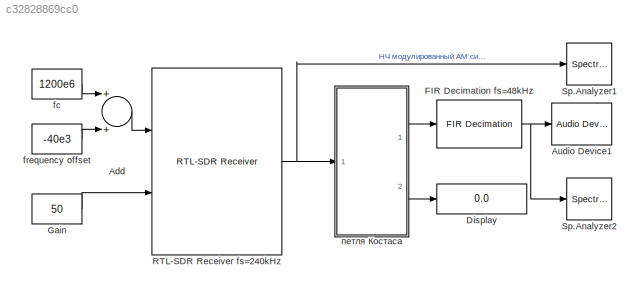
MODEL slx_c32828869cc0
KIND model
CONFIG AbsTol = auto
CONFIG EnableMultiTasking = off
CONFIG FixedStep = auto
CONFIG MaxStep = auto
CONFIG MinStep = auto
CONFIG PreLoadFcn = % параметры контура ФАПЧ\nfs=240e3; % частота дискретизации (Гц)\nA = 1;       % амплитуда входного сигнала \nT = 1/fs;    % период дискретизации\nKp = A/2;   % коэффициент усиления ФД\nBn = 1000; % шумовая полоса, Гц\nKo = 1;      % коэффициент усиления ГУН (нормирован к fs)\nd = 0.707;  % демпинг фактор\n% оценка коэффициентов ПФ\nK1 = (4*d*Bn*T)/(Ko*Kp*(d+1/(4*d)));\nK2 = (4*(Bn*T)^2)/(Ko*Kp*(d+1/4*d)^2)...<+1ch>
CONFIG RelTol = 1e-3
CONFIG SampleTimeConstraint = Unconstrained
CONFIG Solver = VariableStepAuto
CONFIG SolverName = VariableStepAuto
CONFIG StartTime = 0.0
CONFIG StopTime = inf
BLOCK [Sum] Add
  InputSameDT = off
  OutDataTypeStr = Inherit: Inherit via internal rule
  Ports = [2, 1]
  SaturateOnIntegerOverflow = off
BLOCK [Reference] Audio Device1  REF=dspsnks4/Audio Device
Writer
  Ports = [1]
  SourceBlock = dspsnks4/Audio Device\nWriter
  SourceProductBaseCode = DS
  SourceProductName = DSP System Toolbox
  SourceType = Audio Device Writer
BLOCK [Display] Display
  Decimation = 1
  Ports = [1]
BLOCK [Reference] FIR Decimation fs=48kHz  REF=dspmlti4/FIR
Decimation
  Ports = [1, 1]
  SourceBlock = dspmlti4/FIR\nDecimation
  SourceProductBaseCode = DS
  SourceProductName = DSP System Toolbox
  SourceType = FIR Decimation
  UserDataPersistent = on
BLOCK [Constant] Gain
  Value = 50
BLOCK [Reference] RTL-SDR Receiver fs=240kHz  REF=sdrrlib/RTL-SDR
Receiver
  Ports = [2, 1]
  SourceBlock = sdrrlib/RTL-SDR\nReceiver
  SourceProductBaseCode = RTLSDR
  SourceProductName = Communications System Toolbox Support Package for RTL-SDR Radio
  SourceType = RTL-SDR Receiver
BLOCK [SpectrumAnalyzer] Sp.Analyzer1
  Ports = [1]
  ScopeSpecificationString = spbscopes.SpectrumAnalyzerBlockCfg('CurrentConfiguration', extmgr.ConfigurationSet(extmgr.Configuration('Core','General UI',true,'ShowMainToolbar',false,'ShowStatusbar',false,'FigureColor',[1 1 1]),extmgr.Configuration('Core','Source UI',true),extmgr.Configuration('Sources','WiredSimulink',true),extmgr.Configuration('Sources','Workspace',false),extmgr.Configuration('Sources','Streaming',false),ext...<+3370ch>
BLOCK [SpectrumAnalyzer] Sp.Analyzer2
  Ports = [1]
  ScopeSpecificationString = spbscopes.SpectrumAnalyzerBlockCfg('CurrentConfiguration', extmgr.ConfigurationSet(extmgr.Configuration('Core','General UI',true,'ShowMainToolbar',false,'ShowStatusbar',false,'FigureColor',[1 1 1]),extmgr.Configuration('Core','Source UI',true),extmgr.Configuration('Sources','WiredSimulink',true),extmgr.Configuration('Sources','Workspace',false),extmgr.Configuration('Sources','Simulink',false),extm...<+3329ch>
BLOCK [Constant] fc
  Value = 1200e6
BLOCK [Constant] frequency offset
  Value = -40e3
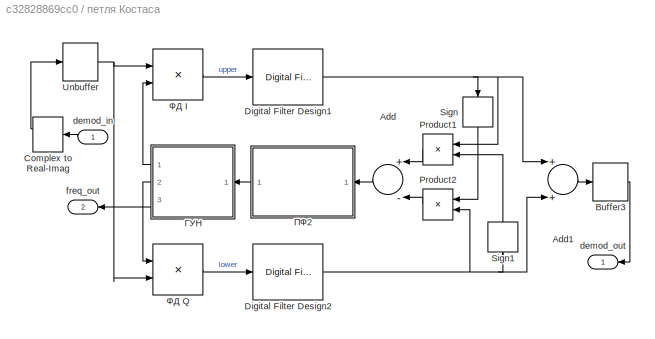
BLOCK [SubSystem] петля Костаса
  Ports = [1, 2]
  RequestExecContextInheritance = off
BLOCK [Sum] петля Костаса/Add
  InputSameDT = off
  Inputs = +-
  OutDataTypeStr = Inherit: Inherit via internal rule
  Ports = [2, 1]
  SaturateOnIntegerOverflow = off
BLOCK [Sum] петля Костаса/Add1
  InputSameDT = off
  OutDataTypeStr = Inherit: Inherit via internal rule
  Ports = [2, 1]
  SaturateOnIntegerOverflow = off
BLOCK [Buffer] петля Костаса/Buffer3
  N = frame_size
  OutputFrames = off
BLOCK [ComplexToRealImag] петля Костаса/Complex to Real-Imag
  Ports = [1, 2]
BLOCK [Reference] петля Костаса/Digital Filter Design1  REF=dsparch4/Digital
Filter Design
  Ports = [1, 1]
  SourceBlock = dsparch4/Digital\nFilter Design
  SourceProductBaseCode = DS
  SourceProductName = DSP System Toolbox
  SourceType = Digital Filter Design
  UserDataPersistent = on
BLOCK [Reference] петля Костаса/Digital Filter Design2  REF=dsparch4/Digital
Filter Design
  Ports = [1, 1]
  SourceBlock = dsparch4/Digital\nFilter Design
  SourceProductBaseCode = DS
  SourceProductName = DSP System Toolbox
  SourceType = Digital Filter Design
  UserDataPersistent = on
BLOCK [Product] петля Костаса/Product1
  InputSameDT = off
  OutDataTypeStr = Inherit: Inherit via internal rule
  Ports = [2, 1]
  RndMeth = Floor
  SaturateOnIntegerOverflow = off
BLOCK [Product] петля Костаса/Product2
  InputSameDT = off
  OutDataTypeStr = Inherit: Inherit via internal rule
  Ports = [2, 1]
  RndMeth = Floor
  SaturateOnIntegerOverflow = off
BLOCK [Signum] петля Костаса/Sign
BLOCK [Signum] петля Костаса/Sign1
BLOCK [Unbuffer] петля Костаса/Unbuffer
  Ports = [1, 1]
BLOCK [Inport] петля Костаса/demod_in
  IconDisplay = Port number
BLOCK [Outport] петля Костаса/demod_out
  IconDisplay = Port number
BLOCK [Outport] петля Костаса/freq_out
  IconDisplay = Port number
  Port = 2
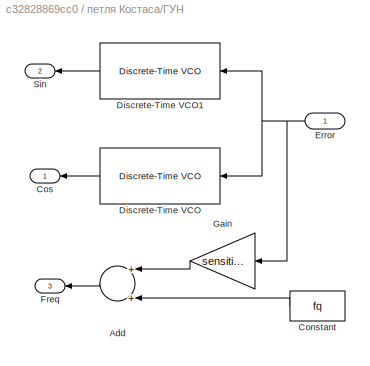
BLOCK [SubSystem] петля Костаса/ГУН
  Ports = [1, 3]
  RequestExecContextInheritance = off
BLOCK [Sum] петля Костаса/ГУН/Add
  InputSameDT = off
  OutDataTypeStr = Inherit: Inherit via internal rule
  Ports = [2, 1]
  SaturateOnIntegerOverflow = off
BLOCK [Constant] петля Костаса/ГУН/Constant
  SampleTime = 1/fs
  Value = fq
BLOCK [Outport] петля Костаса/ГУН/Cos
  IconDisplay = Port number
BLOCK [Reference] петля Костаса/ГУН/Discrete-Time VCO  REF=commsynccomp2/Discrete-Time
VCO
  Ports = [1, 1]
  SourceBlock = commsynccomp2/Discrete-Time\nVCO
  SourceProductBaseCode = CM
  SourceProductName = Communications System Toolbox
  SourceType = Discrete-Time VCO
BLOCK [Reference] петля Костаса/ГУН/Discrete-Time VCO1  REF=commsynccomp2/Discrete-Time
VCO
  Ports = [1, 1]
  SourceBlock = commsynccomp2/Discrete-Time\nVCO
  SourceProductBaseCode = CM
  SourceProductName = Communications System Toolbox
  SourceType = Discrete-Time VCO
BLOCK [Inport] петля Костаса/ГУН/Error
  IconDisplay = Port number
BLOCK [Outport] петля Костаса/ГУН/Freq
  IconDisplay = Port number
  Port = 3
BLOCK [Gain] петля Костаса/ГУН/Gain
  Gain = sensitivity
  OutDataTypeStr = Inherit: Inherit via internal rule
  ParamDataTypeStr = Inherit: Inherit via internal rule
  SaturateOnIntegerOverflow = off
BLOCK [Outport] петля Костаса/ГУН/Sin
  IconDisplay = Port number
  Port = 2
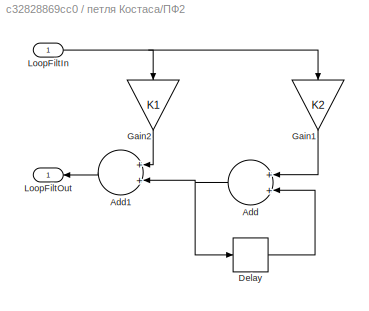
BLOCK [SubSystem] петля Костаса/ПФ2
  Ports = [1, 1]
  RequestExecContextInheritance = off
BLOCK [Sum] петля Костаса/ПФ2/Add
  InputSameDT = off
  OutDataTypeStr = Inherit: Inherit via internal rule
  Ports = [2, 1]
  SaturateOnIntegerOverflow = off
BLOCK [Sum] петля Костаса/ПФ2/Add1
  InputSameDT = off
  OutDataTypeStr = Inherit: Inherit via internal rule
  Ports = [2, 1]
  SaturateOnIntegerOverflow = off
BLOCK [Delay] петля Костаса/ПФ2/Delay
  DelayLength = 1
  InputPortMap = u0
  Ports = [1, 1]
BLOCK [Gain] петля Костаса/ПФ2/Gain1
  Gain = K2
  OutDataTypeStr = Inherit: Inherit via internal rule
  ParamDataTypeStr = Inherit: Inherit via internal rule
  SaturateOnIntegerOverflow = off
BLOCK [Gain] петля Костаса/ПФ2/Gain2
  Gain = K1
  OutDataTypeStr = Inherit: Inherit via internal rule
  ParamDataTypeStr = Inherit: Inherit via internal rule
  SaturateOnIntegerOverflow = off
BLOCK [Inport] петля Костаса/ПФ2/LoopFiltIn
  IconDisplay = Port number
BLOCK [Outport] петля Костаса/ПФ2/LoopFiltOut
  IconDisplay = Port number
BLOCK [Product] петля Костаса/ФД I
  InputSameDT = off
  OutDataTypeStr = Inherit: Inherit via internal rule
  Ports = [2, 1]
  RndMeth = Floor
  SaturateOnIntegerOverflow = off
BLOCK [Product] петля Костаса/ФД Q
  InputSameDT = off
  OutDataTypeStr = Inherit: Inherit via internal rule
  Ports = [2, 1]
  RndMeth = Floor
  SaturateOnIntegerOverflow = off
LINE Add:1 -> RTL-SDR Receiver fs=240kHz:1
NET FIR Decimation fs=48kHz:1 -> Audio Device1:1, Sp.Analyzer2:1
LINE Gain:1 -> RTL-SDR Receiver fs=240kHz:2
NET RTL-SDR Receiver fs=240kHz:1 -> Sp.Analyzer1:1, петля Костаса:1
LINE fc:1 -> Add:1
LINE frequency offset:1 -> Add:2
LINE петля Костаса/Add1:1 -> петля Костаса/Buffer3:1
LINE петля Костаса/Add:1 -> петля Костаса/ПФ2:1
LINE петля Костаса/Buffer3:1 -> петля Костаса/demod_out:1
LINE петля Костаса/Complex to Real-Imag:1 -> петля Костаса/Unbuffer:1
NET петля Костаса/Digital Filter Design1:1 -> петля Костаса/Add1:1, петля Костаса/Product1:1, петля Костаса/Sign:1
NET петля Костаса/Digital Filter Design2:1 -> петля Костаса/Add1:2, петля Костаса/Product2:2, петля Костаса/Sign1:1
LINE петля Костаса/Product1:1 -> петля Костаса/Add:1
LINE петля Костаса/Product2:1 -> петля Костаса/Add:2
LINE петля Костаса/Sign1:1 -> петля Костаса/Product1:2
LINE петля Костаса/Sign:1 -> петля Костаса/Product2:1
NET петля Костаса/Unbuffer:1 -> петля Костаса/ФД I:1, петля Костаса/ФД Q:2
LINE петля Костаса/demod_in:1 -> петля Костаса/Complex to Real-Imag:1
LINE петля Костаса/ГУН/Add:1 -> петля Костаса/ГУН/Freq:1
LINE петля Костаса/ГУН/Constant:1 -> петля Костаса/ГУН/Add:2
LINE петля Костаса/ГУН/Discrete-Time VCO1:1 -> петля Костаса/ГУН/Sin:1
LINE петля Костаса/ГУН/Discrete-Time VCO:1 -> петля Костаса/ГУН/Cos:1
NET петля Костаса/ГУН/Error:1 -> петля Костаса/ГУН/Discrete-Time VCO1:1, петля Костаса/ГУН/Discrete-Time VCO:1, петля Костаса/ГУН/Gain:1
LINE петля Костаса/ГУН/Gain:1 -> петля Костаса/ГУН/Add:1
LINE петля Костаса/ГУН:1 -> петля Костаса/ФД I:2
LINE петля Костаса/ГУН:2 -> петля Костаса/ФД Q:1
LINE петля Костаса/ГУН:3 -> петля Костаса/freq_out:1
LINE петля Костаса/ПФ2/Add1:1 -> петля Костаса/ПФ2/LoopFiltOut:1
NET петля Костаса/ПФ2/Add:1 -> петля Костаса/ПФ2/Add1:2, петля Костаса/ПФ2/Delay:1
LINE петля Костаса/ПФ2/Delay:1 -> петля Костаса/ПФ2/Add:2
LINE петля Костаса/ПФ2/Gain1:1 -> петля Костаса/ПФ2/Add:1
LINE петля Костаса/ПФ2/Gain2:1 -> петля Костаса/ПФ2/Add1:1
NET петля Костаса/ПФ2/LoopFiltIn:1 -> петля Костаса/ПФ2/Gain1:1, петля Костаса/ПФ2/Gain2:1
LINE петля Костаса/ПФ2:1 -> петля Костаса/ГУН:1
LINE петля Костаса/ФД I:1 -> петля Костаса/Digital Filter Design1:1
LINE петля Костаса/ФД Q:1 -> петля Костаса/Digital Filter Design2:1
LINE петля Костаса:1 -> FIR Decimation fs=48kHz:1
LINE петля Костаса:2 -> Display:1
note: NET lines group one-source signal fan-out (src -> all destinations, sorted); 1:1 wires keep LINE
